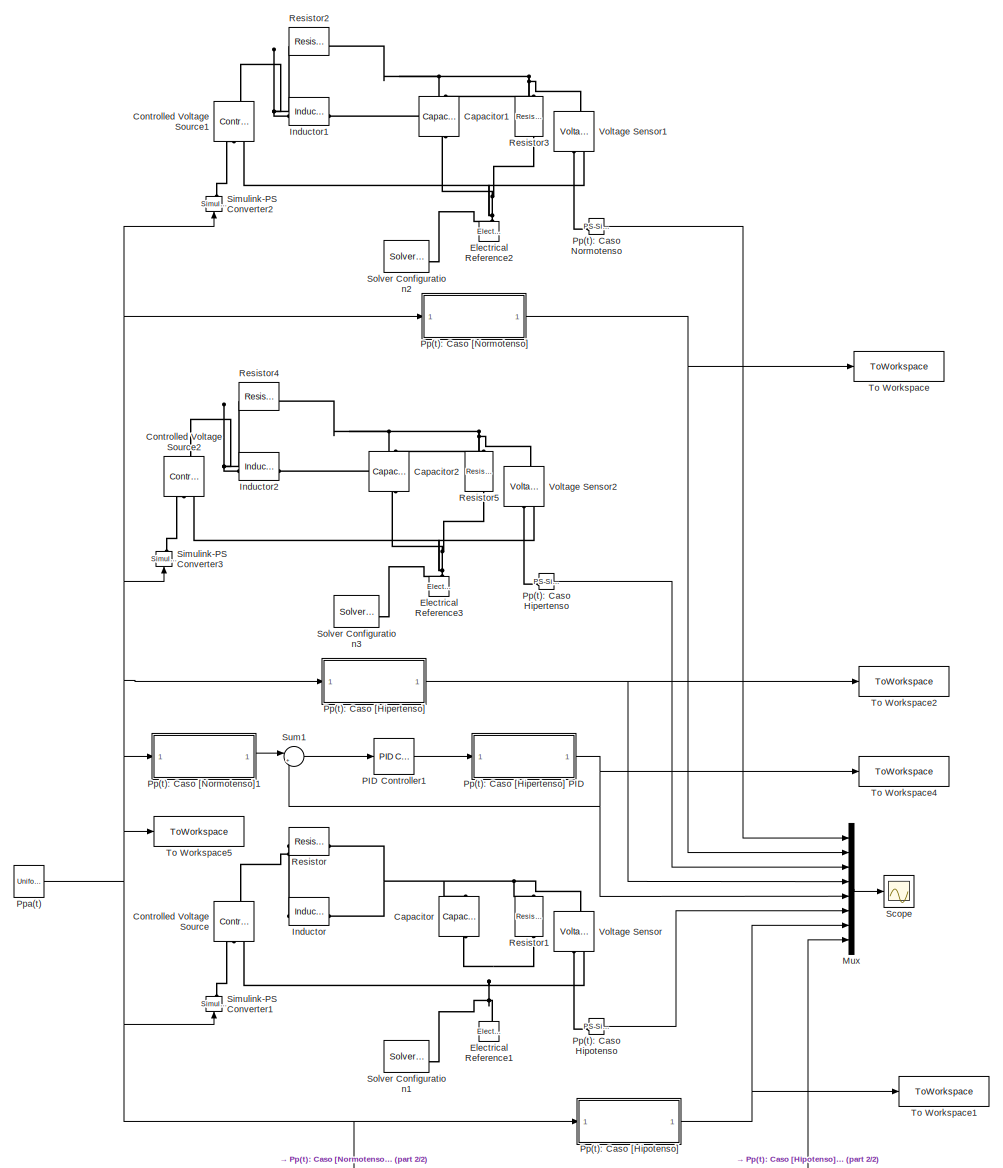
[diagram: root canvas - part 1/2, most of the canvas]
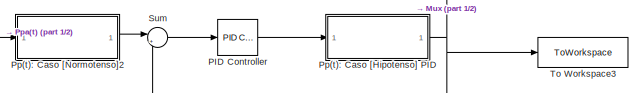
[diagram: root canvas - part 2/2, bottom right region]
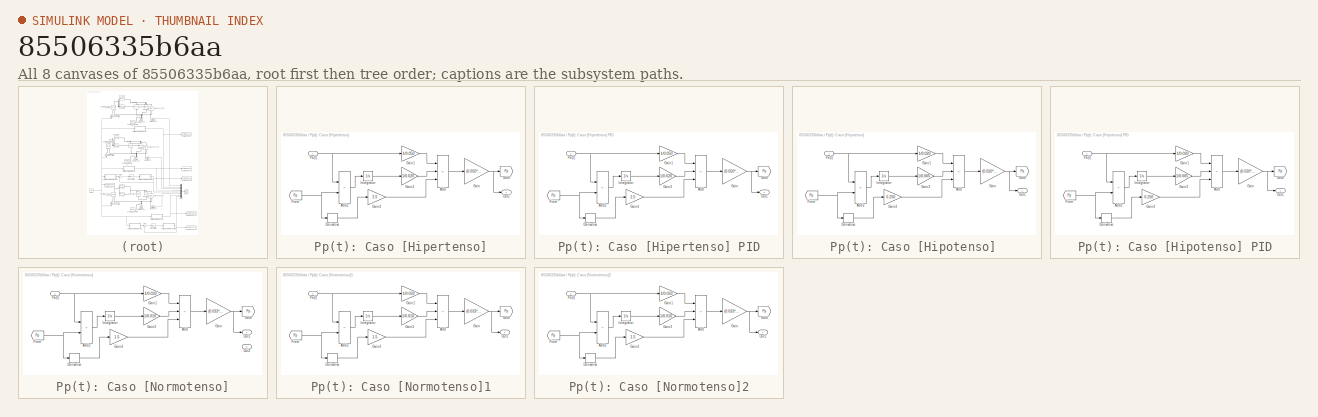
[diagram: thumbnail index - all 8 canvases of the model, root first then tree order]
MODEL slx_85506335b6aa
KIND model
CONFIG AbsTol = auto
CONFIG EnableMultiTasking = off
CONFIG FixedStep = auto
CONFIG MaxStep = 1E-3
CONFIG MinStep = auto
CONFIG RelTol = 1e-3
CONFIG SampleTimeConstraint = Unconstrained
CONFIG SolverName = ode23t
CONFIG StartTime = 0.0
CONFIG StopTime = 10.0
BLOCK [Reference] Capacitor  REF=fl_lib/Electrical/Electrical Elements/Capacitor
  NameLocation = left
  SourceBlock = fl_lib/Electrical/Electrical Elements/Capacitor
  SourceType = Capacitor
BLOCK [Reference] Capacitor1  REF=fl_lib/Electrical/Electrical Elements/Capacitor
  NameLocation = left
  SourceBlock = fl_lib/Electrical/Electrical Elements/Capacitor
  SourceType = Capacitor
BLOCK [Reference] Capacitor2  REF=fl_lib/Electrical/Electrical Elements/Capacitor
  NameLocation = left
  SourceBlock = fl_lib/Electrical/Electrical Elements/Capacitor
  SourceType = Capacitor
BLOCK [Reference] Controlled Voltage Source  REF=fl_lib/Electrical/Electrical Sources/Controlled Voltage
Source
  NameLocation = right
  SourceBlock = fl_lib/Electrical/Electrical Sources/Controlled Voltage\nSource
  SourceType = Controlled Voltage\nSource
BLOCK [Reference] Controlled Voltage Source1  REF=fl_lib/Electrical/Electrical Sources/Controlled Voltage
Source
  NameLocation = right
  SourceBlock = fl_lib/Electrical/Electrical Sources/Controlled Voltage\nSource
  SourceType = Controlled Voltage\nSource
BLOCK [Reference] Controlled Voltage Source2  REF=fl_lib/Electrical/Electrical Sources/Controlled Voltage
Source
  NameLocation = right
  SourceBlock = fl_lib/Electrical/Electrical Sources/Controlled Voltage\nSource
  SourceType = Controlled Voltage\nSource
BLOCK [Reference] Electrical Reference1  REF=fl_lib/Electrical/Electrical Elements/Electrical Reference
  NameLocation = right
  SourceBlock = fl_lib/Electrical/Electrical Elements/Electrical Reference
  SourceType = Electrical Reference
BLOCK [Reference] Electrical Reference2  REF=fl_lib/Electrical/Electrical Elements/Electrical Reference
  NameLocation = right
  SourceBlock = fl_lib/Electrical/Electrical Elements/Electrical Reference
  SourceType = Electrical Reference
BLOCK [Reference] Electrical Reference3  REF=fl_lib/Electrical/Electrical Elements/Electrical Reference
  NameLocation = right
  SourceBlock = fl_lib/Electrical/Electrical Elements/Electrical Reference
  SourceType = Electrical Reference
BLOCK [Reference] Inductor  REF=fl_lib/Electrical/Electrical Elements/Inductor
  SourceBlock = fl_lib/Electrical/Electrical Elements/Inductor
  SourceType = Inductor
BLOCK [Reference] Inductor1  REF=fl_lib/Electrical/Electrical Elements/Inductor
  SourceBlock = fl_lib/Electrical/Electrical Elements/Inductor
  SourceType = Inductor
BLOCK [Reference] Inductor2  REF=fl_lib/Electrical/Electrical Elements/Inductor
  SourceBlock = fl_lib/Electrical/Electrical Elements/Inductor
  SourceType = Inductor
BLOCK [Mux] Mux
  DisplayOption = bar
  Inputs = 8
BLOCK [Reference] PID Controller  REF=slpidlib/PID Controller
  LibrarySourceBlock = simulink/Continuous/PID Controller
  SourceBlock = slpidlib/PID Controller
  SourceType = PID 1dof
BLOCK [Reference] PID Controller1  REF=slpidlib/PID Controller
  LibrarySourceBlock = simulink/Continuous/PID Controller
  SourceBlock = slpidlib/PID Controller
  SourceType = PID 1dof
BLOCK [Reference] Pp(t): Caso Hipertenso  REF=nesl_utility/PS-Simulink
Converter
  SourceBlock = nesl_utility/PS-Simulink\nConverter
  SourceType = PS-Simulink\nConverter
BLOCK [Reference] Pp(t): Caso Hipotenso  REF=nesl_utility/PS-Simulink
Converter
  SourceBlock = nesl_utility/PS-Simulink\nConverter
  SourceType = PS-Simulink\nConverter
BLOCK [Reference] Pp(t): Caso Normotenso  REF=nesl_utility/PS-Simulink
Converter
  SourceBlock = nesl_utility/PS-Simulink\nConverter
  SourceType = PS-Simulink\nConverter
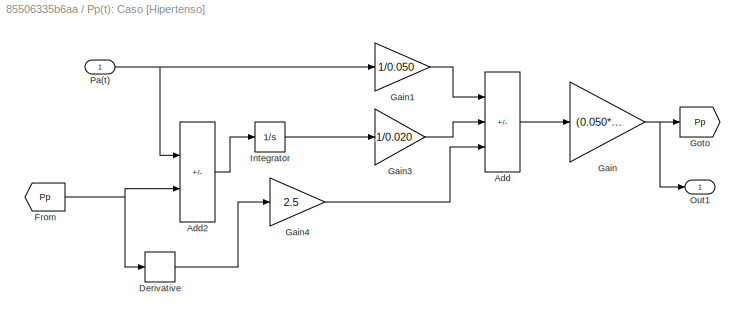
BLOCK [SubSystem] Pp(t): Caso [Hipertenso]
BLOCK [SubSystem] Pp(t): Caso [Hipertenso] PID
BLOCK [Sum] Pp(t): Caso [Hipertenso] PID/Add
  IconShape = rectangular
  Inputs = ++-
BLOCK [Sum] Pp(t): Caso [Hipertenso] PID/Add2
  IconShape = rectangular
  Inputs = +-
BLOCK [Derivative] Pp(t): Caso [Hipertenso] PID/Derivative
BLOCK [From] Pp(t): Caso [Hipertenso] PID/From
  GotoTag = Pp
BLOCK [Gain] Pp(t): Caso [Hipertenso] PID/Gain
  Gain = (0.050*1.4)/(0.050+1.4)
BLOCK [Gain] Pp(t): Caso [Hipertenso] PID/Gain1
  Gain = 1/0.050
BLOCK [Gain] Pp(t): Caso [Hipertenso] PID/Gain3
  Gain = 1/0.020
BLOCK [Gain] Pp(t): Caso [Hipertenso] PID/Gain4
  Gain = 2.5
BLOCK [Goto] Pp(t): Caso [Hipertenso] PID/Goto
  GotoTag = Pp
BLOCK [Integrator] Pp(t): Caso [Hipertenso] PID/Integrator
BLOCK [Outport] Pp(t): Caso [Hipertenso] PID/Out1
BLOCK [Inport] Pp(t): Caso [Hipertenso] PID/Pa(t)
BLOCK [Sum] Pp(t): Caso [Hipertenso]/Add
  IconShape = rectangular
  Inputs = ++-
BLOCK [Sum] Pp(t): Caso [Hipertenso]/Add2
  IconShape = rectangular
  Inputs = +-
BLOCK [Derivative] Pp(t): Caso [Hipertenso]/Derivative
BLOCK [From] Pp(t): Caso [Hipertenso]/From
  GotoTag = Pp
BLOCK [Gain] Pp(t): Caso [Hipertenso]/Gain
  Gain = (0.050*1.4)/(0.050+1.4)
BLOCK [Gain] Pp(t): Caso [Hipertenso]/Gain1
  Gain = 1/0.050
BLOCK [Gain] Pp(t): Caso [Hipertenso]/Gain3
  Gain = 1/0.020
BLOCK [Gain] Pp(t): Caso [Hipertenso]/Gain4
  Gain = 2.5
BLOCK [Goto] Pp(t): Caso [Hipertenso]/Goto
  GotoTag = Pp
BLOCK [Integrator] Pp(t): Caso [Hipertenso]/Integrator
BLOCK [Outport] Pp(t): Caso [Hipertenso]/Out1
BLOCK [Inport] Pp(t): Caso [Hipertenso]/Pa(t)
BLOCK [SubSystem] Pp(t): Caso [Hipotenso] 
BLOCK [Sum] Pp(t): Caso [Hipotenso] /Add
  IconShape = rectangular
  Inputs = ++-
BLOCK [Sum] Pp(t): Caso [Hipotenso] /Add2
  IconShape = rectangular
  Inputs = +-
BLOCK [Derivative] Pp(t): Caso [Hipotenso] /Derivative
BLOCK [From] Pp(t): Caso [Hipotenso] /From
  GotoTag = Pp
BLOCK [Gain] Pp(t): Caso [Hipotenso] /Gain
  Gain = (0.020*0.600)/(0.020+0.600)
BLOCK [Gain] Pp(t): Caso [Hipotenso] /Gain1
  Gain = 1/0.020
BLOCK [Gain] Pp(t): Caso [Hipotenso] /Gain3
  Gain = 1/0.005
BLOCK [Gain] Pp(t): Caso [Hipotenso] /Gain4
  Gain = 0.250
BLOCK [Goto] Pp(t): Caso [Hipotenso] /Goto
  GotoTag = Pp
BLOCK [Integrator] Pp(t): Caso [Hipotenso] /Integrator
BLOCK [Outport] Pp(t): Caso [Hipotenso] /Out1
BLOCK [Inport] Pp(t): Caso [Hipotenso] /Pa(t)
BLOCK [SubSystem] Pp(t): Caso [Hipotenso] PID
BLOCK [Sum] Pp(t): Caso [Hipotenso] PID/Add
  IconShape = rectangular
  Inputs = ++-
BLOCK [Sum] Pp(t): Caso [Hipotenso] PID/Add2
  IconShape = rectangular
  Inputs = +-
BLOCK [Derivative] Pp(t): Caso [Hipotenso] PID/Derivative
BLOCK [From] Pp(t): Caso [Hipotenso] PID/From
  GotoTag = Pp
BLOCK [Gain] Pp(t): Caso [Hipotenso] PID/Gain
  Gain = (0.020*0.600)/(0.020+0.600)
BLOCK [Gain] Pp(t): Caso [Hipotenso] PID/Gain1
  Gain = 1/0.020
BLOCK [Gain] Pp(t): Caso [Hipotenso] PID/Gain3
  Gain = 1/0.005
BLOCK [Gain] Pp(t): Caso [Hipotenso] PID/Gain4
  Gain = 0.250
BLOCK [Goto] Pp(t): Caso [Hipotenso] PID/Goto
  GotoTag = Pp
BLOCK [Integrator] Pp(t): Caso [Hipotenso] PID/Integrator
BLOCK [Outport] Pp(t): Caso [Hipotenso] PID/Out1
BLOCK [Inport] Pp(t): Caso [Hipotenso] PID/Pa(t)
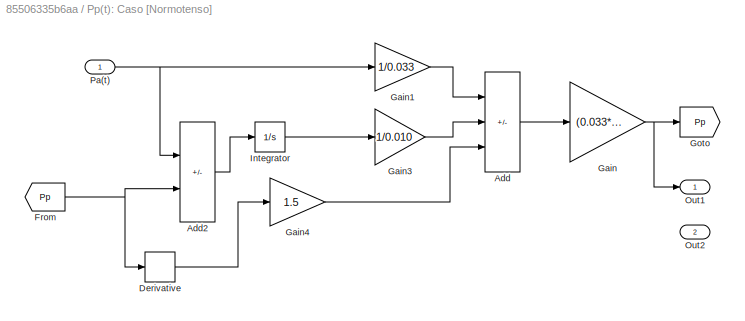
BLOCK [SubSystem] Pp(t): Caso [Normotenso]
  PortSchema = {"entries":[{"content":{"sides":[{"content":{"connectorIds":["In1"]},"type":"ConnectorPlacement.EquallySpacedRectSide","uuid":"31d49f5b-ec0b-4ba9-8ce0-c312c27acef8"},{"content":{"connectorIds":["Out1"],"side":"RIGHT"},"type":"ConnectorPlacement.EquallySpacedRectSide","uuid":"62992713-140b-4123-82a3-4e8e6168027d"},{"content":{"side":"TOP"},"type":"ConnectorPlacement.EquallySpacedRectSide","uuid":"6...<+372ch>
BLOCK [Sum] Pp(t): Caso [Normotenso]/Add
  IconShape = rectangular
  Inputs = ++-
BLOCK [Sum] Pp(t): Caso [Normotenso]/Add2
  IconShape = rectangular
  Inputs = +-
BLOCK [Derivative] Pp(t): Caso [Normotenso]/Derivative
BLOCK [From] Pp(t): Caso [Normotenso]/From
  GotoTag = Pp
BLOCK [Gain] Pp(t): Caso [Normotenso]/Gain
  Gain = (0.033*0.950)/(0.033+0.950)
BLOCK [Gain] Pp(t): Caso [Normotenso]/Gain1
  Gain = 1/0.033
BLOCK [Gain] Pp(t): Caso [Normotenso]/Gain3
  Gain = 1/0.010
BLOCK [Gain] Pp(t): Caso [Normotenso]/Gain4
  Gain = 1.5
BLOCK [Goto] Pp(t): Caso [Normotenso]/Goto
  GotoTag = Pp
BLOCK [Integrator] Pp(t): Caso [Normotenso]/Integrator
BLOCK [Outport] Pp(t): Caso [Normotenso]/Out1
BLOCK [Outport] Pp(t): Caso [Normotenso]/Out2
  Port = 2
BLOCK [Inport] Pp(t): Caso [Normotenso]/Pa(t)
BLOCK [SubSystem] Pp(t): Caso [Normotenso]1
BLOCK [Sum] Pp(t): Caso [Normotenso]1/Add
  IconShape = rectangular
  Inputs = ++-
BLOCK [Sum] Pp(t): Caso [Normotenso]1/Add2
  IconShape = rectangular
  Inputs = +-
BLOCK [Derivative] Pp(t): Caso [Normotenso]1/Derivative
BLOCK [From] Pp(t): Caso [Normotenso]1/From
  GotoTag = Pp
BLOCK [Gain] Pp(t): Caso [Normotenso]1/Gain
  Gain = (0.033*0.950)/(0.033+0.950)
BLOCK [Gain] Pp(t): Caso [Normotenso]1/Gain1
  Gain = 1/0.033
BLOCK [Gain] Pp(t): Caso [Normotenso]1/Gain3
  Gain = 1/0.010
BLOCK [Gain] Pp(t): Caso [Normotenso]1/Gain4
  Gain = 1.5
BLOCK [Goto] Pp(t): Caso [Normotenso]1/Goto
  GotoTag = Pp
BLOCK [Integrator] Pp(t): Caso [Normotenso]1/Integrator
BLOCK [Outport] Pp(t): Caso [Normotenso]1/Out1
BLOCK [Inport] Pp(t): Caso [Normotenso]1/Pa(t)
BLOCK [SubSystem] Pp(t): Caso [Normotenso]2
BLOCK [Sum] Pp(t): Caso [Normotenso]2/Add
  IconShape = rectangular
  Inputs = ++-
BLOCK [Sum] Pp(t): Caso [Normotenso]2/Add2
  IconShape = rectangular
  Inputs = +-
BLOCK [Derivative] Pp(t): Caso [Normotenso]2/Derivative
BLOCK [From] Pp(t): Caso [Normotenso]2/From
  GotoTag = Pp
BLOCK [Gain] Pp(t): Caso [Normotenso]2/Gain
  Gain = (0.033*0.950)/(0.033+0.950)
BLOCK [Gain] Pp(t): Caso [Normotenso]2/Gain1
  Gain = 1/0.033
BLOCK [Gain] Pp(t): Caso [Normotenso]2/Gain3
  Gain = 1/0.010
BLOCK [Gain] Pp(t): Caso [Normotenso]2/Gain4
  Gain = 1.5
BLOCK [Goto] Pp(t): Caso [Normotenso]2/Goto
  GotoTag = Pp
BLOCK [Integrator] Pp(t): Caso [Normotenso]2/Integrator
BLOCK [Outport] Pp(t): Caso [Normotenso]2/Out1
BLOCK [Inport] Pp(t): Caso [Normotenso]2/Pa(t)
BLOCK [UniformRandomNumber] Ppa(t)
  Minimum = -0.2
  SampleTime = 0.5
  Seed = 106
BLOCK [Reference] Resistor  REF=fl_lib/Electrical/Electrical Elements/Resistor
  SourceBlock = fl_lib/Electrical/Electrical Elements/Resistor
  SourceType = Resistor
BLOCK [Reference] Resistor1  REF=fl_lib/Electrical/Electrical Elements/Resistor
  NameLocation = left
  SourceBlock = fl_lib/Electrical/Electrical Elements/Resistor
  SourceType = Resistor
BLOCK [Reference] Resistor2  REF=fl_lib/Electrical/Electrical Elements/Resistor
  SourceBlock = fl_lib/Electrical/Electrical Elements/Resistor
  SourceType = Resistor
BLOCK [Reference] Resistor3  REF=fl_lib/Electrical/Electrical Elements/Resistor
  NameLocation = left
  SourceBlock = fl_lib/Electrical/Electrical Elements/Resistor
  SourceType = Resistor
BLOCK [Reference] Resistor4  REF=fl_lib/Electrical/Electrical Elements/Resistor
  SourceBlock = fl_lib/Electrical/Electrical Elements/Resistor
  SourceType = Resistor
BLOCK [Reference] Resistor5  REF=fl_lib/Electrical/Electrical Elements/Resistor
  NameLocation = left
  SourceBlock = fl_lib/Electrical/Electrical Elements/Resistor
  SourceType = Resistor
BLOCK [Scope] Scope
  Floating = off
  NumInputPorts = 1
  ScopeSpecificationString = Simulink.scopes.TimeScopeBlockCfg('CurrentConfiguration', extmgr.ConfigurationSet(extmgr.Configuration('Core','General UI',true,'FigureColor',[1 1 1]),extmgr.Configuration('Core','Source UI',true),extmgr.Configuration('Sources','WiredSimulink',true),extmgr.Configuration('Visuals','Time Domain',true,'SerializedDisplays',{struct('MinYLimReal','-1.00000','MaxYLimReal','1.2817','YLabelReal','','MinYLi...<+2573ch>
BLOCK [Reference] Simulink-PS Converter1  REF=nesl_utility/Simulink-PS
Converter
  NameLocation = right
  SourceBlock = nesl_utility/Simulink-PS\nConverter
  SourceType = Simulink-PS\nConverter
BLOCK [Reference] Simulink-PS Converter2  REF=nesl_utility/Simulink-PS
Converter
  NameLocation = right
  SourceBlock = nesl_utility/Simulink-PS\nConverter
  SourceType = Simulink-PS\nConverter
BLOCK [Reference] Simulink-PS Converter3  REF=nesl_utility/Simulink-PS
Converter
  NameLocation = right
  SourceBlock = nesl_utility/Simulink-PS\nConverter
  SourceType = Simulink-PS\nConverter
BLOCK [Reference] Solver Configuration1  REF=nesl_utility/Solver
Configuration
  SourceBlock = nesl_utility/Solver\nConfiguration
  SourceType = Solver\nConfiguration
BLOCK [Reference] Solver Configuration2  REF=nesl_utility/Solver
Configuration
  SourceBlock = nesl_utility/Solver\nConfiguration
  SourceType = Solver\nConfiguration
BLOCK [Reference] Solver Configuration3  REF=nesl_utility/Solver
Configuration
  SourceBlock = nesl_utility/Solver\nConfiguration
  SourceType = Solver\nConfiguration
BLOCK [Sum] Sum
  Inputs = |+-
BLOCK [Sum] Sum1
  Inputs = |+-
BLOCK [ToWorkspace] To Workspace
  FixptAsFi = on
  MaxDataPoints = inf
  SampleTime = -1
  VariableName = Pp0
BLOCK [ToWorkspace] To Workspace1
  FixptAsFi = on
  MaxDataPoints = inf
  SampleTime = -1
  VariableName = Pp1
BLOCK [ToWorkspace] To Workspace2
  FixptAsFi = on
  MaxDataPoints = inf
  SampleTime = -1
  VariableName = Pp2
BLOCK [ToWorkspace] To Workspace3
  FixptAsFi = on
  MaxDataPoints = inf
  SampleTime = -1
  VariableName = Pp3
BLOCK [ToWorkspace] To Workspace4
  FixptAsFi = on
  MaxDataPoints = inf
  SampleTime = -1
  VariableName = Pp4
BLOCK [ToWorkspace] To Workspace5
  FixptAsFi = on
  MaxDataPoints = inf
  SampleTime = -1
  VariableName = Ppa
BLOCK [Reference] Voltage Sensor  REF=fl_lib/Electrical/Electrical Sensors/Voltage Sensor
  NameLocation = right
  SourceBlock = fl_lib/Electrical/Electrical Sensors/Voltage Sensor
  SourceType = Voltage Sensor
BLOCK [Reference] Voltage Sensor1  REF=fl_lib/Electrical/Electrical Sensors/Voltage Sensor
  NameLocation = right
  SourceBlock = fl_lib/Electrical/Electrical Sensors/Voltage Sensor
  SourceType = Voltage Sensor
BLOCK [Reference] Voltage Sensor2  REF=fl_lib/Electrical/Electrical Sensors/Voltage Sensor
  NameLocation = right
  SourceBlock = fl_lib/Electrical/Electrical Sensors/Voltage Sensor
  SourceType = Voltage Sensor
LINE Mux:1 -> Scope:1
LINE PID Controller1:1 -> Pp(t): Caso [Hipertenso] PID:1
LINE PID Controller:1 -> Pp(t): Caso [Hipotenso] PID:1
LINE Pp(t): Caso Hipertenso:1 -> Mux:3
LINE Pp(t): Caso Hipotenso:1 -> Mux:6
LINE Pp(t): Caso Normotenso:1 -> Mux:1
LINE Pp(t): Caso [Hipertenso] PID/Add2:1 -> Pp(t): Caso [Hipertenso] PID/Integrator:1
LINE Pp(t): Caso [Hipertenso] PID/Add:1 -> Pp(t): Caso [Hipertenso] PID/Gain:1
LINE Pp(t): Caso [Hipertenso] PID/Derivative:1 -> Pp(t): Caso [Hipertenso] PID/Gain4:1
NET Pp(t): Caso [Hipertenso] PID/From:1 -> Pp(t): Caso [Hipertenso] PID/Add2:2, Pp(t): Caso [Hipertenso] PID/Derivative:1
LINE Pp(t): Caso [Hipertenso] PID/Gain1:1 -> Pp(t): Caso [Hipertenso] PID/Add:1
LINE Pp(t): Caso [Hipertenso] PID/Gain3:1 -> Pp(t): Caso [Hipertenso] PID/Add:2
LINE Pp(t): Caso [Hipertenso] PID/Gain4:1 -> Pp(t): Caso [Hipertenso] PID/Add:3
NET Pp(t): Caso [Hipertenso] PID/Gain:1 -> Pp(t): Caso [Hipertenso] PID/Goto:1, Pp(t): Caso [Hipertenso] PID/Out1:1
LINE Pp(t): Caso [Hipertenso] PID/Integrator:1 -> Pp(t): Caso [Hipertenso] PID/Gain3:1
NET Pp(t): Caso [Hipertenso] PID/Pa(t):1 -> Pp(t): Caso [Hipertenso] PID/Add2:1, Pp(t): Caso [Hipertenso] PID/Gain1:1
NET Pp(t): Caso [Hipertenso] PID:1 -> Mux:5, Sum1:2, To Workspace4:1
LINE Pp(t): Caso [Hipertenso]/Add2:1 -> Pp(t): Caso [Hipertenso]/Integrator:1
LINE Pp(t): Caso [Hipertenso]/Add:1 -> Pp(t): Caso [Hipertenso]/Gain:1
LINE Pp(t): Caso [Hipertenso]/Derivative:1 -> Pp(t): Caso [Hipertenso]/Gain4:1
NET Pp(t): Caso [Hipertenso]/From:1 -> Pp(t): Caso [Hipertenso]/Add2:2, Pp(t): Caso [Hipertenso]/Derivative:1
LINE Pp(t): Caso [Hipertenso]/Gain1:1 -> Pp(t): Caso [Hipertenso]/Add:1
LINE Pp(t): Caso [Hipertenso]/Gain3:1 -> Pp(t): Caso [Hipertenso]/Add:2
LINE Pp(t): Caso [Hipertenso]/Gain4:1 -> Pp(t): Caso [Hipertenso]/Add:3
NET Pp(t): Caso [Hipertenso]/Gain:1 -> Pp(t): Caso [Hipertenso]/Goto:1, Pp(t): Caso [Hipertenso]/Out1:1
LINE Pp(t): Caso [Hipertenso]/Integrator:1 -> Pp(t): Caso [Hipertenso]/Gain3:1
NET Pp(t): Caso [Hipertenso]/Pa(t):1 -> Pp(t): Caso [Hipertenso]/Add2:1, Pp(t): Caso [Hipertenso]/Gain1:1
NET Pp(t): Caso [Hipertenso]:1 -> Mux:4, To Workspace2:1
LINE Pp(t): Caso [Hipotenso] /Add2:1 -> Pp(t): Caso [Hipotenso] /Integrator:1
LINE Pp(t): Caso [Hipotenso] /Add:1 -> Pp(t): Caso [Hipotenso] /Gain:1
LINE Pp(t): Caso [Hipotenso] /Derivative:1 -> Pp(t): Caso [Hipotenso] /Gain4:1
NET Pp(t): Caso [Hipotenso] /From:1 -> Pp(t): Caso [Hipotenso] /Add2:2, Pp(t): Caso [Hipotenso] /Derivative:1
LINE Pp(t): Caso [Hipotenso] /Gain1:1 -> Pp(t): Caso [Hipotenso] /Add:1
LINE Pp(t): Caso [Hipotenso] /Gain3:1 -> Pp(t): Caso [Hipotenso] /Add:2
LINE Pp(t): Caso [Hipotenso] /Gain4:1 -> Pp(t): Caso [Hipotenso] /Add:3
NET Pp(t): Caso [Hipotenso] /Gain:1 -> Pp(t): Caso [Hipotenso] /Goto:1, Pp(t): Caso [Hipotenso] /Out1:1
LINE Pp(t): Caso [Hipotenso] /Integrator:1 -> Pp(t): Caso [Hipotenso] /Gain3:1
NET Pp(t): Caso [Hipotenso] /Pa(t):1 -> Pp(t): Caso [Hipotenso] /Add2:1, Pp(t): Caso [Hipotenso] /Gain1:1
NET Pp(t): Caso [Hipotenso] :1 -> Mux:7, To Workspace1:1
LINE Pp(t): Caso [Hipotenso] PID/Add2:1 -> Pp(t): Caso [Hipotenso] PID/Integrator:1
LINE Pp(t): Caso [Hipotenso] PID/Add:1 -> Pp(t): Caso [Hipotenso] PID/Gain:1
LINE Pp(t): Caso [Hipotenso] PID/Derivative:1 -> Pp(t): Caso [Hipotenso] PID/Gain4:1
NET Pp(t): Caso [Hipotenso] PID/From:1 -> Pp(t): Caso [Hipotenso] PID/Add2:2, Pp(t): Caso [Hipotenso] PID/Derivative:1
LINE Pp(t): Caso [Hipotenso] PID/Gain1:1 -> Pp(t): Caso [Hipotenso] PID/Add:1
LINE Pp(t): Caso [Hipotenso] PID/Gain3:1 -> Pp(t): Caso [Hipotenso] PID/Add:2
LINE Pp(t): Caso [Hipotenso] PID/Gain4:1 -> Pp(t): Caso [Hipotenso] PID/Add:3
NET Pp(t): Caso [Hipotenso] PID/Gain:1 -> Pp(t): Caso [Hipotenso] PID/Goto:1, Pp(t): Caso [Hipotenso] PID/Out1:1
LINE Pp(t): Caso [Hipotenso] PID/Integrator:1 -> Pp(t): Caso [Hipotenso] PID/Gain3:1
NET Pp(t): Caso [Hipotenso] PID/Pa(t):1 -> Pp(t): Caso [Hipotenso] PID/Add2:1, Pp(t): Caso [Hipotenso] PID/Gain1:1
NET Pp(t): Caso [Hipotenso] PID:1 -> Mux:8, Sum:2, To Workspace3:1
LINE Pp(t): Caso [Normotenso]/Add2:1 -> Pp(t): Caso [Normotenso]/Integrator:1
LINE Pp(t): Caso [Normotenso]/Add:1 -> Pp(t): Caso [Normotenso]/Gain:1
LINE Pp(t): Caso [Normotenso]/Derivative:1 -> Pp(t): Caso [Normotenso]/Gain4:1
NET Pp(t): Caso [Normotenso]/From:1 -> Pp(t): Caso [Normotenso]/Add2:2, Pp(t): Caso [Normotenso]/Derivative:1
LINE Pp(t): Caso [Normotenso]/Gain1:1 -> Pp(t): Caso [Normotenso]/Add:1
LINE Pp(t): Caso [Normotenso]/Gain3:1 -> Pp(t): Caso [Normotenso]/Add:2
LINE Pp(t): Caso [Normotenso]/Gain4:1 -> Pp(t): Caso [Normotenso]/Add:3
NET Pp(t): Caso [Normotenso]/Gain:1 -> Pp(t): Caso [Normotenso]/Goto:1, Pp(t): Caso [Normotenso]/Out1:1
LINE Pp(t): Caso [Normotenso]/Integrator:1 -> Pp(t): Caso [Normotenso]/Gain3:1
NET Pp(t): Caso [Normotenso]/Pa(t):1 -> Pp(t): Caso [Normotenso]/Add2:1, Pp(t): Caso [Normotenso]/Gain1:1
LINE Pp(t): Caso [Normotenso]1/Add2:1 -> Pp(t): Caso [Normotenso]1/Integrator:1
LINE Pp(t): Caso [Normotenso]1/Add:1 -> Pp(t): Caso [Normotenso]1/Gain:1
LINE Pp(t): Caso [Normotenso]1/Derivative:1 -> Pp(t): Caso [Normotenso]1/Gain4:1
NET Pp(t): Caso [Normotenso]1/From:1 -> Pp(t): Caso [Normotenso]1/Add2:2, Pp(t): Caso [Normotenso]1/Derivative:1
LINE Pp(t): Caso [Normotenso]1/Gain1:1 -> Pp(t): Caso [Normotenso]1/Add:1
LINE Pp(t): Caso [Normotenso]1/Gain3:1 -> Pp(t): Caso [Normotenso]1/Add:2
LINE Pp(t): Caso [Normotenso]1/Gain4:1 -> Pp(t): Caso [Normotenso]1/Add:3
NET Pp(t): Caso [Normotenso]1/Gain:1 -> Pp(t): Caso [Normotenso]1/Goto:1, Pp(t): Caso [Normotenso]1/Out1:1
LINE Pp(t): Caso [Normotenso]1/Integrator:1 -> Pp(t): Caso [Normotenso]1/Gain3:1
NET Pp(t): Caso [Normotenso]1/Pa(t):1 -> Pp(t): Caso [Normotenso]1/Add2:1, Pp(t): Caso [Normotenso]1/Gain1:1
LINE Pp(t): Caso [Normotenso]1:1 -> Sum1:1
LINE Pp(t): Caso [Normotenso]2/Add2:1 -> Pp(t): Caso [Normotenso]2/Integrator:1
LINE Pp(t): Caso [Normotenso]2/Add:1 -> Pp(t): Caso [Normotenso]2/Gain:1
LINE Pp(t): Caso [Normotenso]2/Derivative:1 -> Pp(t): Caso [Normotenso]2/Gain4:1
NET Pp(t): Caso [Normotenso]2/From:1 -> Pp(t): Caso [Normotenso]2/Add2:2, Pp(t): Caso [Normotenso]2/Derivative:1
LINE Pp(t): Caso [Normotenso]2/Gain1:1 -> Pp(t): Caso [Normotenso]2/Add:1
LINE Pp(t): Caso [Normotenso]2/Gain3:1 -> Pp(t): Caso [Normotenso]2/Add:2
LINE Pp(t): Caso [Normotenso]2/Gain4:1 -> Pp(t): Caso [Normotenso]2/Add:3
NET Pp(t): Caso [Normotenso]2/Gain:1 -> Pp(t): Caso [Normotenso]2/Goto:1, Pp(t): Caso [Normotenso]2/Out1:1
LINE Pp(t): Caso [Normotenso]2/Integrator:1 -> Pp(t): Caso [Normotenso]2/Gain3:1
NET Pp(t): Caso [Normotenso]2/Pa(t):1 -> Pp(t): Caso [Normotenso]2/Add2:1, Pp(t): Caso [Normotenso]2/Gain1:1
LINE Pp(t): Caso [Normotenso]2:1 -> Sum:1
NET Pp(t): Caso [Normotenso]:1 -> Mux:2, To Workspace:1
NET Ppa(t):1 -> Pp(t): Caso [Hipertenso]:1, Pp(t): Caso [Hipotenso] :1, Pp(t): Caso [Normotenso]1:1, Pp(t): Caso [Normotenso]2:1, Pp(t): Caso [Normotenso]:1, Simulink-PS Converter1:1, Simulink-PS Converter2:1, Simulink-PS Converter3:1, To Workspace5:1
LINE Sum1:1 -> PID Controller1:1
LINE Sum:1 -> PID Controller:1
PNET net1: Capacitor1:LConn1 -- Inductor1:RConn1 -- Resistor2:RConn1 -- Resistor3:LConn1 -- Voltage Sensor1:LConn1
PNET net2: Capacitor1:RConn1 -- Controlled Voltage Source1:RConn2 -- Electrical Reference2:LConn1 -- Resistor3:RConn1 -- Solver Configuration2:RConn1 -- Voltage Sensor1:RConn2
PNET net3: Capacitor2:LConn1 -- Inductor2:RConn1 -- Resistor4:RConn1 -- Resistor5:LConn1 -- Voltage Sensor2:LConn1
PNET net4: Capacitor2:RConn1 -- Controlled Voltage Source2:RConn2 -- Electrical Reference3:LConn1 -- Resistor5:RConn1 -- Solver Configuration3:RConn1 -- Voltage Sensor2:RConn2
PNET net5: Capacitor:LConn1 -- Inductor:RConn1 -- Resistor1:LConn1 -- Resistor:RConn1 -- Voltage Sensor:LConn1
PNET net6: Capacitor:RConn1 -- Controlled Voltage Source:RConn2 -- Electrical Reference1:LConn1 -- Resistor1:RConn1 -- Solver Configuration1:RConn1 -- Voltage Sensor:RConn2
PNET net7: Controlled Voltage Source1:LConn1 -- Inductor1:LConn1 -- Resistor2:LConn1
PLINE Controlled Voltage Source1:RConn1 -- Simulink-PS Converter2:RConn1
PNET net8: Controlled Voltage Source2:LConn1 -- Inductor2:LConn1 -- Resistor4:LConn1
PLINE Controlled Voltage Source2:RConn1 -- Simulink-PS Converter3:RConn1
PNET net9: Controlled Voltage Source:LConn1 -- Inductor:LConn1 -- Resistor:LConn1
PLINE Controlled Voltage Source:RConn1 -- Simulink-PS Converter1:RConn1
PLINE Pp(t): Caso Hipertenso:LConn1 -- Voltage Sensor2:RConn1
PLINE Pp(t): Caso Hipotenso:LConn1 -- Voltage Sensor:RConn1
PLINE Pp(t): Caso Normotenso:LConn1 -- Voltage Sensor1:RConn1
note: NET lines group one-source signal fan-out (src -> all destinations, sorted); 1:1 wires keep LINE; PNET lines group multi-terminal physical nets as a canonical sorted terminal list (undirected conserving connections); 2-terminal nets keep the pairwise PLINE form
